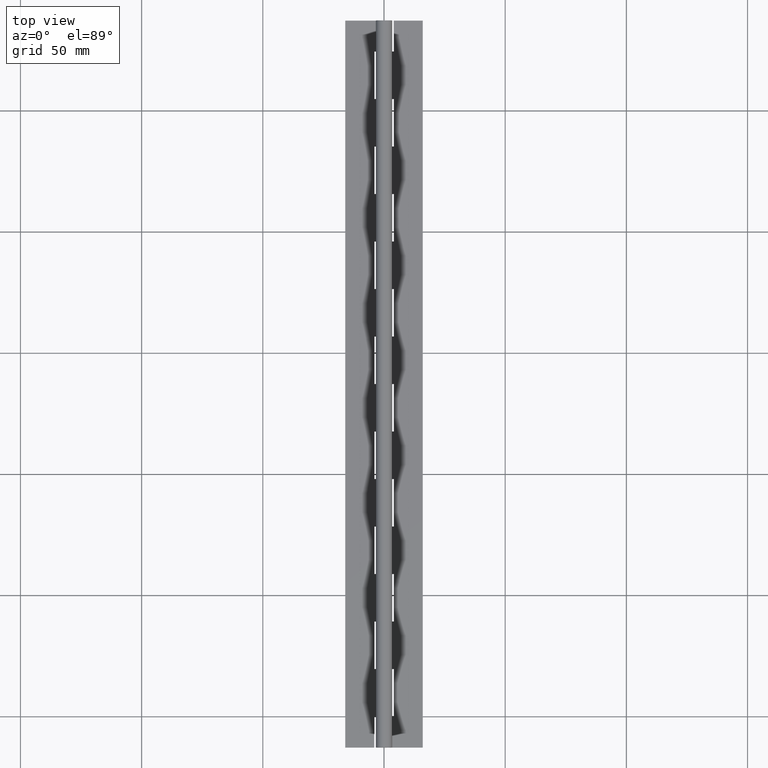
[diagram: clean part render]
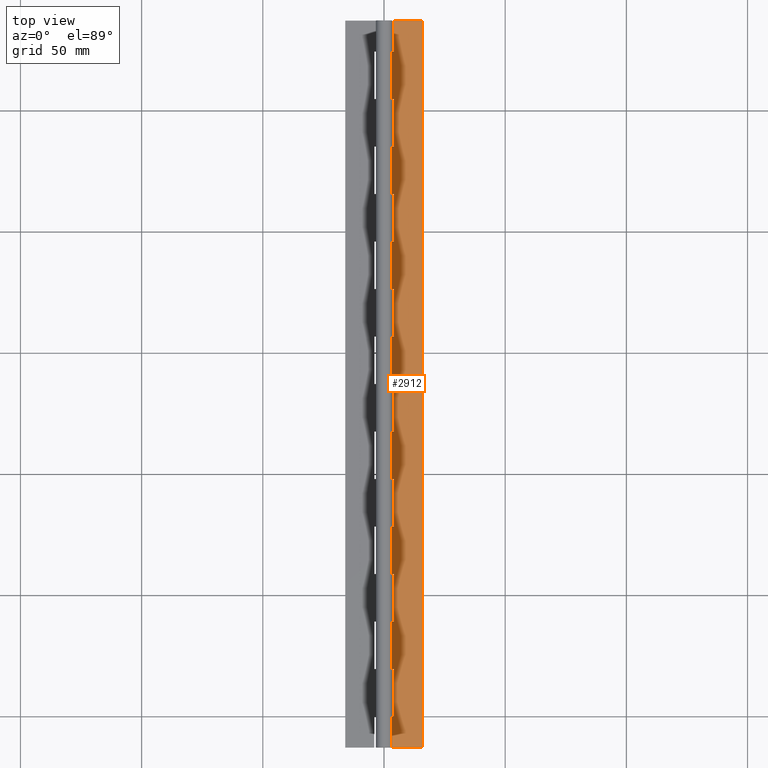
[diagram: same view with one face highlighted and labeled with its STEP entity id]
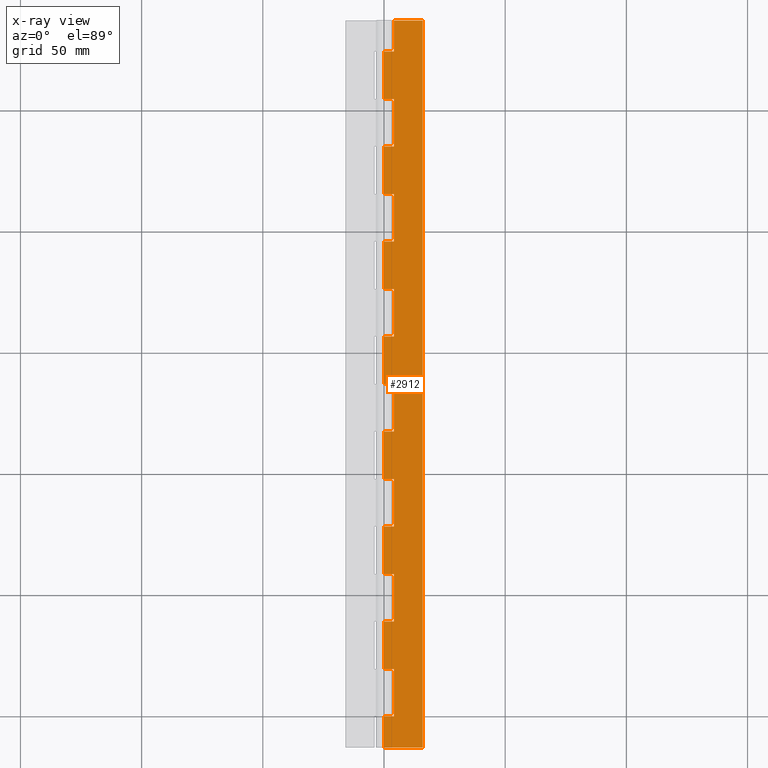
[diagram: x-ray of the same camera — body ghosted, the highlighted face saturated]
A machine part, top view. The second image highlights one B-rep face of the part: STEP entity #2912.
The next image is the same camera in x-ray: the body ghosted, the highlighted face saturated — about 0% of this face is hidden behind the body in this view.
In plain terms, the highlighted planar face has unit normal (-0, 0, -1).
Its self-contained STEP definition (entity closure, byte-faithful):
#18 = ORIENTED_EDGE ( 'NONE', *, *, #1668, .T. ) ;
#20 = EDGE_CURVE ( 'NONE', #1975, #3031, #1834, .T. ) ;
#45 = CARTESIAN_POINT ( 'NONE',  ( 0.0000000000000000000, 98.00000000000002800, -1.750002187502756900 ) ) ;
#72 = CARTESIAN_POINT ( 'NONE',  ( 0.0000000000000000000, 117.6000000000000100, -1.750002187502756900 ) ) ;
#91 = ORIENTED_EDGE ( 'NONE', *, *, #2311, .T. ) ;
#96 = DIRECTION ( 'NONE',  ( -1.770125995894701000E-016, -1.000000000000000000, 4.797936125805254900E-033 ) ) ;
#112 = ORIENTED_EDGE ( 'NONE', *, *, #265, .T. ) ;
#127 = DIRECTION ( 'NONE',  ( 1.000000000000000000, 0.0000000000000000000, 0.0000000000000000000 ) ) ;
#136 = ORIENTED_EDGE ( 'NONE', *, *, #286, .T. ) ;
#141 = VECTOR ( 'NONE', #925, 1000.000000000000000 ) ;
#181 = VECTOR ( 'NONE', #328, 1000.000000000000000 ) ;
#190 = CARTESIAN_POINT ( 'NONE',  ( 4.000000000000000000, 254.8000000000000400, -1.750002187502757200 ) ) ;
#192 = CARTESIAN_POINT ( 'NONE',  ( 4.000000000000024000, 274.3999999999999800, -1.750002187502757200 ) ) ;
#235 = EDGE_CURVE ( 'NONE', #1399, #2593, #2533, .T. ) ;
#261 = CARTESIAN_POINT ( 'NONE',  ( 4.000000000000010700, 274.3999999999999800, -1.750002187502757200 ) ) ;
#265 = EDGE_CURVE ( 'NONE', #842, #1924, #270, .T. ) ;
#270 = LINE ( 'NONE', #72, #3214 ) ;
#286 = EDGE_CURVE ( 'NONE', #2292, #3274, #1700, .T. ) ;
#288 = VERTEX_POINT ( 'NONE', #2581 ) ;
#298 = CARTESIAN_POINT ( 'NONE',  ( 0.0000000000000000000, 176.4000000000000300, -1.750002187502756900 ) ) ;
#302 = DIRECTION ( 'NONE',  ( -0.0000000000000000000, -1.000000000000000000, -0.0000000000000000000 ) ) ;
#328 = DIRECTION ( 'NONE',  ( -0.0000000000000000000, -1.000000000000000000, -0.0000000000000000000 ) ) ;
#335 = DIRECTION ( 'NONE',  ( 1.000000000000000000, 0.0000000000000000000, -2.710505431213761100E-017 ) ) ;
#369 = VECTOR ( 'NONE', #2018, 1000.000000000000000 ) ;
#372 = LINE ( 'NONE', #45, #1801 ) ;
#386 = CARTESIAN_POINT ( 'NONE',  ( 3.999999999999996400, 78.40000000000000600, -1.750002187502756900 ) ) ;
#387 = CARTESIAN_POINT ( 'NONE',  ( 0.0000000000000000000, 39.20000000000001000, -1.750002187502756900 ) ) ;
#395 = VERTEX_POINT ( 'NONE', #2987 ) ;
#422 = CARTESIAN_POINT ( 'NONE',  ( 0.0000000000000000000, 78.40000000000002000, -1.750002187502756900 ) ) ;
#427 = CARTESIAN_POINT ( 'NONE',  ( 3.999999999999996400, 274.3999999999999800, -1.750002187502756900 ) ) ;
#436 = LINE ( 'NONE', #3615, #1863 ) ;
#466 = EDGE_CURVE ( 'NONE', #1770, #1315, #3601, .T. ) ;
#487 = EDGE_CURVE ( 'NONE', #1264, #1090, #3339, .T. ) ;
#537 = VECTOR ( 'NONE', #96, 1000.000000000000000 ) ;
#539 = LINE ( 'NONE', #901, #369 ) ;
#540 = EDGE_CURVE ( 'NONE', #3142, #2324, #1828, .T. ) ;
#571 = ORIENTED_EDGE ( 'NONE', *, *, #2564, .T. ) ;
#574 = VECTOR ( 'NONE', #1943, 1000.000000000000000 ) ;
#593 = LINE ( 'NONE', #261, #1268 ) ;
#605 = VERTEX_POINT ( 'NONE', #832 ) ;
#614 = DIRECTION ( 'NONE',  ( -1.000000000000000000, 0.0000000000000000000, 2.710505431213761100E-017 ) ) ;
#623 = PLANE ( 'NONE',  #3542 ) ;
#624 = CARTESIAN_POINT ( 'NONE',  ( 0.0000000000000000000, 156.8000000000000100, -1.750002187502756900 ) ) ;
#634 = VECTOR ( 'NONE', #2372, 1000.000000000000000 ) ;
#645 = CARTESIAN_POINT ( 'NONE',  ( 4.000000000000017800, 274.3999999999999800, -1.750002187502757200 ) ) ;
#683 = LINE ( 'NONE', #2185, #2006 ) ;
#723 = CARTESIAN_POINT ( 'NONE',  ( 3.999999999999999100, 287.1999999999999300, -1.750002187502757400 ) ) ;
#725 = LINE ( 'NONE', #2004, #3484 ) ;
#739 = VERTEX_POINT ( 'NONE', #2451 ) ;
#784 = CARTESIAN_POINT ( 'NONE',  ( 4.000000000000045300, 274.3999999999999800, -1.750002187502757200 ) ) ;
#791 = CARTESIAN_POINT ( 'NONE',  ( 2.143134577426118000E-016, 287.1999999999999300, -1.750002187502757400 ) ) ;
#792 = VERTEX_POINT ( 'NONE', #2283 ) ;
#799 = CARTESIAN_POINT ( 'NONE',  ( 0.0000000000000000000, 235.2000000000000200, -1.750002187502756900 ) ) ;
#806 = ORIENTED_EDGE ( 'NONE', *, *, #2696, .T. ) ;
#828 = DIRECTION ( 'NONE',  ( -1.000000000000000000, 0.0000000000000000000, 2.710505431213761100E-017 ) ) ;
#831 = VERTEX_POINT ( 'NONE', #3640 ) ;
#832 = CARTESIAN_POINT ( 'NONE',  ( 2.143125705451388300E-016, 254.8000000000000400, -1.750002187502756900 ) ) ;
#842 = VERTEX_POINT ( 'NONE', #844 ) ;
#843 = EDGE_CURVE ( 'NONE', #395, #3473, #3598, .T. ) ;
#844 = CARTESIAN_POINT ( 'NONE',  ( 3.999999999999996400, 117.6000000000000100, -1.750002187502756900 ) ) ;
#863 = EDGE_CURVE ( 'NONE', #831, #739, #1329, .T. ) ;
#884 = DIRECTION ( 'NONE',  ( 1.000000000000000000, 0.0000000000000000000, -2.710505431213761100E-017 ) ) ;
#901 = CARTESIAN_POINT ( 'NONE',  ( 0.0000000000000000000, 0.0000000000000000000, -1.750002187502756900 ) ) ;
#914 = LINE ( 'NONE', #2896, #2317 ) ;
#924 = DIRECTION ( 'NONE',  ( -1.000000000000000000, 0.0000000000000000000, 2.710505431213761100E-017 ) ) ;
#925 = DIRECTION ( 'NONE',  ( -1.000000000000000000, 0.0000000000000000000, 2.710505431213761100E-017 ) ) ;
#926 = EDGE_CURVE ( 'NONE', #1336, #842, #1074, .T. ) ;
#943 = ORIENTED_EDGE ( 'NONE', *, *, #2421, .T. ) ;
#961 = LINE ( 'NONE', #1693, #3124 ) ;
#971 = CARTESIAN_POINT ( 'NONE',  ( 4.000000000000031100, 274.3999999999999800, -1.750002187502757200 ) ) ;
#974 = VERTEX_POINT ( 'NONE', #1104 ) ;
#1007 = ORIENTED_EDGE ( 'NONE', *, *, #1493, .T. ) ;
#1064 = ORIENTED_EDGE ( 'NONE', *, *, #20, .T. ) ;
#1074 = LINE ( 'NONE', #192, #1826 ) ;
#1085 = VECTOR ( 'NONE', #1494, 1000.000000000000000 ) ;
#1090 = VERTEX_POINT ( 'NONE', #3050 ) ;
#1104 = CARTESIAN_POINT ( 'NONE',  ( 16.00000000000000000, -12.80000000000000100, -1.750002187502757400 ) ) ;
#1105 = CARTESIAN_POINT ( 'NONE',  ( 2.143134577426118000E-016, 274.3999999999999800, -1.750002187502757400 ) ) ;
#1107 = EDGE_CURVE ( 'NONE', #3001, #288, #2703, .T. ) ;
#1128 = LINE ( 'NONE', #1467, #3312 ) ;
#1149 = VECTOR ( 'NONE', #2079, 1000.000000000000000 ) ;
#1176 = VERTEX_POINT ( 'NONE', #3076 ) ;
#1216 = DIRECTION ( 'NONE',  ( -1.770125995894701000E-016, -1.000000000000000000, 4.797936125805254900E-033 ) ) ;
#1240 = ORIENTED_EDGE ( 'NONE', *, *, #1746, .T. ) ;
#1264 = VERTEX_POINT ( 'NONE', #190 ) ;
#1268 = VECTOR ( 'NONE', #2819, 1000.000000000000000 ) ;
#1310 = EDGE_CURVE ( 'NONE', #3274, #831, #1780, .T. ) ;
#1315 = VERTEX_POINT ( 'NONE', #2883 ) ;
#1329 = LINE ( 'NONE', #784, #2752 ) ;
#1336 = VERTEX_POINT ( 'NONE', #1444 ) ;
#1376 = ORIENTED_EDGE ( 'NONE', *, *, #2905, .F. ) ;
#1385 = CARTESIAN_POINT ( 'NONE',  ( 0.0000000000000000000, 196.0000000000000300, -1.750002187502756900 ) ) ;
#1399 = VERTEX_POINT ( 'NONE', #2307 ) ;
#1410 = CARTESIAN_POINT ( 'NONE',  ( 0.0000000000000000000, 254.8000000000000400, -1.750002187502756900 ) ) ;
#1421 = DIRECTION ( 'NONE',  ( -0.0000000000000000000, -1.000000000000000000, -0.0000000000000000000 ) ) ;
#1425 = CARTESIAN_POINT ( 'NONE',  ( 2.143125705451388300E-016, 39.20000000000001000, -1.750002187502756900 ) ) ;
#1444 = CARTESIAN_POINT ( 'NONE',  ( 4.000000000000000000, 137.2000000000000200, -1.750002187502757200 ) ) ;
#1445 = CARTESIAN_POINT ( 'NONE',  ( 2.143134577426118000E-016, 274.3999999999999800, -1.750002187502757400 ) ) ;
#1450 = EDGE_CURVE ( 'NONE', #3473, #1399, #2656, .T. ) ;
#1467 = CARTESIAN_POINT ( 'NONE',  ( 16.00000000000000000, -12.80000000000000100, -1.750002187502757400 ) ) ;
#1493 = EDGE_CURVE ( 'NONE', #3504, #3278, #2478, .T. ) ;
#1494 = DIRECTION ( 'NONE',  ( -0.0000000000000000000, -1.000000000000000000, -0.0000000000000000000 ) ) ;
#1523 = VERTEX_POINT ( 'NONE', #3659 ) ;
#1539 = VECTOR ( 'NONE', #3360, 1000.000000000000000 ) ;
#1546 = ORIENTED_EDGE ( 'NONE', *, *, #2907, .T. ) ;
#1547 = CARTESIAN_POINT ( 'NONE',  ( 2.143125705451388300E-016, 215.6000000000000500, -1.750002187502756900 ) ) ;
#1593 = DIRECTION ( 'NONE',  ( 1.000000000000000000, 0.0000000000000000000, -2.710505431213761100E-017 ) ) ;
#1608 = DIRECTION ( 'NONE',  ( 1.000000000000000000, 0.0000000000000000000, -2.710505431213761100E-017 ) ) ;
#1630 = CARTESIAN_POINT ( 'NONE',  ( 2.143134577426118000E-016, 274.3999999999999800, -1.750002187502757400 ) ) ;
#1637 = CARTESIAN_POINT ( 'NONE',  ( 2.143125705451388300E-016, 156.8000000000000100, -1.750002187502756900 ) ) ;
#1664 = LINE ( 'NONE', #2117, #3081 ) ;
#1668 = EDGE_CURVE ( 'NONE', #1924, #2241, #436, .T. ) ;
#1693 = CARTESIAN_POINT ( 'NONE',  ( 2.143134577426118000E-016, 274.3999999999999800, -1.750002187502757400 ) ) ;
#1700 = LINE ( 'NONE', #1445, #181 ) ;
#1727 = DIRECTION ( 'NONE',  ( -0.0000000000000000000, -1.000000000000000000, -0.0000000000000000000 ) ) ;
#1739 = VECTOR ( 'NONE', #127, 1000.000000000000000 ) ;
#1740 = ORIENTED_EDGE ( 'NONE', *, *, #3535, .T. ) ;
#1746 = EDGE_CURVE ( 'NONE', #3278, #1336, #2433, .T. ) ;
#1757 = DIRECTION ( 'NONE',  ( -1.000000000000000000, 0.0000000000000000000, 2.710505431213761100E-017 ) ) ;
#1761 = DIRECTION ( 'NONE',  ( -1.000000000000000000, 0.0000000000000000000, 0.0000000000000000000 ) ) ;
#1765 = CARTESIAN_POINT ( 'NONE',  ( 2.143125705451388300E-016, 137.2000000000000200, -1.750002187502756900 ) ) ;
#1770 = VERTEX_POINT ( 'NONE', #2188 ) ;
#1771 = CARTESIAN_POINT ( 'NONE',  ( 4.000000000000000000, 98.00000000000001400, -1.750002187502757200 ) ) ;
#1780 = LINE ( 'NONE', #2619, #2166 ) ;
#1792 = VECTOR ( 'NONE', #1216, 1000.000000000000000 ) ;
#1795 = VECTOR ( 'NONE', #2118, 1000.000000000000000 ) ;
#1801 = VECTOR ( 'NONE', #335, 1000.000000000000000 ) ;
#1814 = EDGE_CURVE ( 'NONE', #605, #1264, #2834, .T. ) ;
#1826 = VECTOR ( 'NONE', #2903, 1000.000000000000000 ) ;
#1828 = LINE ( 'NONE', #791, #1739 ) ;
#1834 = LINE ( 'NONE', #1630, #1085 ) ;
#1863 = VECTOR ( 'NONE', #3568, 1000.000000000000000 ) ;
#1886 = VECTOR ( 'NONE', #1757, 1000.000000000000000 ) ;
#1912 = ORIENTED_EDGE ( 'NONE', *, *, #3208, .T. ) ;
#1924 = VERTEX_POINT ( 'NONE', #3645 ) ;
#1943 = DIRECTION ( 'NONE',  ( -0.0000000000000000000, -1.000000000000000000, -0.0000000000000000000 ) ) ;
#1968 = FACE_OUTER_BOUND ( 'NONE', #2936, .T. ) ;
#1975 = VERTEX_POINT ( 'NONE', #3404 ) ;
#2004 = CARTESIAN_POINT ( 'NONE',  ( 2.143134577426118000E-016, 274.3999999999999800, -1.750002187502757400 ) ) ;
#2006 = VECTOR ( 'NONE', #3146, 1000.000000000000000 ) ;
#2018 = DIRECTION ( 'NONE',  ( -1.000000000000000000, 0.0000000000000000000, 2.710505431213761100E-017 ) ) ;
#2028 = CARTESIAN_POINT ( 'NONE',  ( 2.143125705451388300E-016, 98.00000000000002800, -1.750002187502756900 ) ) ;
#2044 = ORIENTED_EDGE ( 'NONE', *, *, #2446, .F. ) ;
#2058 = LINE ( 'NONE', #2891, #1886 ) ;
#2079 = DIRECTION ( 'NONE',  ( 1.000000000000000000, 0.0000000000000000000, -2.710505431213761100E-017 ) ) ;
#2080 = VECTOR ( 'NONE', #1593, 1000.000000000000000 ) ;
#2117 = CARTESIAN_POINT ( 'NONE',  ( 4.000000000000038200, 274.3999999999999800, -1.750002187502757200 ) ) ;
#2118 = DIRECTION ( 'NONE',  ( 1.000000000000000000, 0.0000000000000000000, -2.710505431213761100E-017 ) ) ;
#2166 = VECTOR ( 'NONE', #884, 1000.000000000000000 ) ;
#2182 = ORIENTED_EDGE ( 'NONE', *, *, #1450, .T. ) ;
#2185 = CARTESIAN_POINT ( 'NONE',  ( 16.00000000000000000, 274.3999999999999800, -1.750002187502757400 ) ) ;
#2188 = CARTESIAN_POINT ( 'NONE',  ( 2.143125705451388300E-016, 58.80000000000001800, -1.750002187502756900 ) ) ;
#2191 = ORIENTED_EDGE ( 'NONE', *, *, #1107, .T. ) ;
#2211 = ORIENTED_EDGE ( 'NONE', *, *, #3233, .T. ) ;
#2241 = VERTEX_POINT ( 'NONE', #2028 ) ;
#2246 = EDGE_CURVE ( 'NONE', #2333, #792, #2058, .T. ) ;
#2263 = ORIENTED_EDGE ( 'NONE', *, *, #487, .T. ) ;
#2278 = LINE ( 'NONE', #799, #1539 ) ;
#2283 = CARTESIAN_POINT ( 'NONE',  ( 2.143125705451388300E-016, 274.4000000000000300, -1.750002187502756900 ) ) ;
#2292 = VERTEX_POINT ( 'NONE', #1425 ) ;
#2298 = VECTOR ( 'NONE', #3524, 1000.000000000000000 ) ;
#2307 = CARTESIAN_POINT ( 'NONE',  ( 4.000000000000000000, 176.4000000000000300, -1.750002187502757200 ) ) ;
#2311 = EDGE_CURVE ( 'NONE', #792, #605, #961, .T. ) ;
#2317 = VECTOR ( 'NONE', #3193, 1000.000000000000000 ) ;
#2324 = VERTEX_POINT ( 'NONE', #3131 ) ;
#2333 = VERTEX_POINT ( 'NONE', #3685 ) ;
#2351 = VERTEX_POINT ( 'NONE', #3634 ) ;
#2359 = ORIENTED_EDGE ( 'NONE', *, *, #2707, .T. ) ;
#2372 = DIRECTION ( 'NONE',  ( -1.000000000000000000, 0.0000000000000000000, 2.710505431213761100E-017 ) ) ;
#2381 = ORIENTED_EDGE ( 'NONE', *, *, #2641, .T. ) ;
#2402 = CARTESIAN_POINT ( 'NONE',  ( 4.000000000000003600, 274.3999999999999800, -1.750002187502757200 ) ) ;
#2409 = CARTESIAN_POINT ( 'NONE',  ( 4.000000000000000000, 215.6000000000000500, -1.750002187502757200 ) ) ;
#2410 = LINE ( 'NONE', #624, #141 ) ;
#2421 = EDGE_CURVE ( 'NONE', #1523, #395, #3525, .T. ) ;
#2433 = LINE ( 'NONE', #3014, #3203 ) ;
#2446 = EDGE_CURVE ( 'NONE', #2324, #974, #683, .T. ) ;
#2451 = CARTESIAN_POINT ( 'NONE',  ( 3.999999999999996400, 0.0000000000000000000, -1.750002187502756900 ) ) ;
#2476 = CARTESIAN_POINT ( 'NONE',  ( 2.143134577426118000E-016, 274.3999999999999800, -1.750002187502757400 ) ) ;
#2477 = ORIENTED_EDGE ( 'NONE', *, *, #2246, .T. ) ;
#2478 = LINE ( 'NONE', #1105, #3333 ) ;
#2490 = ORIENTED_EDGE ( 'NONE', *, *, #2638, .T. ) ;
#2504 = ORIENTED_EDGE ( 'NONE', *, *, #926, .T. ) ;
#2533 = LINE ( 'NONE', #645, #1792 ) ;
#2536 = LINE ( 'NONE', #2679, #1795 ) ;
#2556 = ORIENTED_EDGE ( 'NONE', *, *, #3628, .T. ) ;
#2564 = EDGE_CURVE ( 'NONE', #2593, #3504, #2410, .T. ) ;
#2567 = DIRECTION ( 'NONE',  ( -1.770125995894701000E-016, -1.000000000000000000, 4.797936125805254900E-033 ) ) ;
#2569 = EDGE_CURVE ( 'NONE', #1176, #2351, #914, .T. ) ;
#2571 = VECTOR ( 'NONE', #3073, 1000.000000000000000 ) ;
#2575 = ORIENTED_EDGE ( 'NONE', *, *, #466, .T. ) ;
#2581 = CARTESIAN_POINT ( 'NONE',  ( 2.143125705451388300E-016, 78.40000000000002000, -1.750002187502756900 ) ) ;
#2593 = VERTEX_POINT ( 'NONE', #2617 ) ;
#2603 = DIRECTION ( 'NONE',  ( -2.710505431213761100E-017, 0.0000000000000000000, -1.000000000000000000 ) ) ;
#2617 = CARTESIAN_POINT ( 'NONE',  ( 3.999999999999996400, 156.8000000000000100, -1.750002187502756900 ) ) ;
#2619 = CARTESIAN_POINT ( 'NONE',  ( 0.0000000000000000000, 19.60000000000000500, -1.750002187502756900 ) ) ;
#2638 = EDGE_CURVE ( 'NONE', #3189, #2292, #2809, .T. ) ;
#2641 = EDGE_CURVE ( 'NONE', #2920, #3001, #3566, .T. ) ;
#2656 = LINE ( 'NONE', #298, #1149 ) ;
#2664 = ORIENTED_EDGE ( 'NONE', *, *, #540, .F. ) ;
#2679 = CARTESIAN_POINT ( 'NONE',  ( 0.0000000000000000000, 215.6000000000000500, -1.750002187502756900 ) ) ;
#2683 = ORIENTED_EDGE ( 'NONE', *, *, #235, .T. ) ;
#2693 = DIRECTION ( 'NONE',  ( -1.770125995894701000E-016, -1.000000000000000000, 4.797936125805254900E-033 ) ) ;
#2694 = DIRECTION ( 'NONE',  ( -1.770125995894701000E-016, -1.000000000000000000, 4.797936125805254900E-033 ) ) ;
#2696 = EDGE_CURVE ( 'NONE', #3031, #2710, #2536, .T. ) ;
#2703 = LINE ( 'NONE', #422, #2298 ) ;
#2707 = EDGE_CURVE ( 'NONE', #3142, #2333, #3308, .T. ) ;
#2710 = VERTEX_POINT ( 'NONE', #2409 ) ;
#2733 = CARTESIAN_POINT ( 'NONE',  ( 3.999999999999996400, 39.20000000000000300, -1.750002187502756900 ) ) ;
#2745 = DIRECTION ( 'NONE',  ( 1.000000000000000000, 0.0000000000000000000, -2.710505431213761100E-017 ) ) ;
#2752 = VECTOR ( 'NONE', #2567, 1000.000000000000000 ) ;
#2766 = VECTOR ( 'NONE', #828, 1000.000000000000000 ) ;
#2809 = LINE ( 'NONE', #387, #634 ) ;
#2819 = DIRECTION ( 'NONE',  ( -1.770125995894701000E-016, -1.000000000000000000, 4.797936125805254900E-033 ) ) ;
#2834 = LINE ( 'NONE', #1410, #2080 ) ;
#2878 = CARTESIAN_POINT ( 'NONE',  ( 0.0000000000000000000, 274.3999999999999800, -1.750002187502756900 ) ) ;
#2883 = CARTESIAN_POINT ( 'NONE',  ( 4.000000000000000000, 58.80000000000000400, -1.750002187502757200 ) ) ;
#2891 = CARTESIAN_POINT ( 'NONE',  ( 0.0000000000000000000, 274.4000000000000300, -1.750002187502756900 ) ) ;
#2893 = ORIENTED_EDGE ( 'NONE', *, *, #2569, .T. ) ;
#2896 = CARTESIAN_POINT ( 'NONE',  ( 2.143134577426118000E-016, 274.3999999999999800, -1.750002187502757400 ) ) ;
#2903 = DIRECTION ( 'NONE',  ( -1.770125995894701000E-016, -1.000000000000000000, 4.797936125805254900E-033 ) ) ;
#2905 = EDGE_CURVE ( 'NONE', #974, #2351, #1128, .T. ) ;
#2907 = EDGE_CURVE ( 'NONE', #2241, #2920, #372, .T. ) ;
#2912 = ADVANCED_FACE ( 'NONE', ( #1968 ), #623, .F. ) ;
#2920 = VERTEX_POINT ( 'NONE', #1771 ) ;
#2936 = EDGE_LOOP ( 'NONE', ( #2664, #2359, #2477, #91, #3479, #2263, #1740, #1064, #806, #2556, #943, #3241, #2182, #2683, #571, #1007, #1240, #2504, #112, #18, #1546, #2381, #2191, #1912, #2575, #3259, #2490, #136, #3074, #2984, #2211, #2893, #1376, #2044 ) ) ;
#2976 = CARTESIAN_POINT ( 'NONE',  ( 2.143125705451388300E-016, 176.4000000000000300, -1.750002187502756900 ) ) ;
#2984 = ORIENTED_EDGE ( 'NONE', *, *, #863, .T. ) ;
#2987 = CARTESIAN_POINT ( 'NONE',  ( 2.143125705451388300E-016, 196.0000000000000300, -1.750002187502756900 ) ) ;
#3001 = VERTEX_POINT ( 'NONE', #386 ) ;
#3014 = CARTESIAN_POINT ( 'NONE',  ( 0.0000000000000000000, 137.2000000000000200, -1.750002187502756900 ) ) ;
#3031 = VERTEX_POINT ( 'NONE', #1547 ) ;
#3050 = CARTESIAN_POINT ( 'NONE',  ( 3.999999999999996400, 235.2000000000000200, -1.750002187502756900 ) ) ;
#3073 = DIRECTION ( 'NONE',  ( -1.770125995894701000E-016, -1.000000000000000000, 4.797936125805254900E-033 ) ) ;
#3074 = ORIENTED_EDGE ( 'NONE', *, *, #1310, .T. ) ;
#3076 = CARTESIAN_POINT ( 'NONE',  ( 0.0000000000000000000, 0.0000000000000000000, -1.750002187502757400 ) ) ;
#3081 = VECTOR ( 'NONE', #2693, 1000.000000000000000 ) ;
#3094 = EDGE_CURVE ( 'NONE', #1315, #3189, #1664, .T. ) ;
#3124 = VECTOR ( 'NONE', #1727, 1000.000000000000000 ) ;
#3131 = CARTESIAN_POINT ( 'NONE',  ( 16.00000000000000000, 287.1999999999999300, -1.750002187502757400 ) ) ;
#3142 = VERTEX_POINT ( 'NONE', #723 ) ;
#3146 = DIRECTION ( 'NONE',  ( -0.0000000000000000000, -1.000000000000000000, -0.0000000000000000000 ) ) ;
#3189 = VERTEX_POINT ( 'NONE', #2733 ) ;
#3193 = DIRECTION ( 'NONE',  ( -0.0000000000000000000, -1.000000000000000000, -0.0000000000000000000 ) ) ;
#3203 = VECTOR ( 'NONE', #2745, 1000.000000000000000 ) ;
#3208 = EDGE_CURVE ( 'NONE', #288, #1770, #725, .T. ) ;
#3214 = VECTOR ( 'NONE', #614, 1000.000000000000000 ) ;
#3218 = VECTOR ( 'NONE', #2694, 1000.000000000000000 ) ;
#3233 = EDGE_CURVE ( 'NONE', #739, #1176, #539, .T. ) ;
#3241 = ORIENTED_EDGE ( 'NONE', *, *, #843, .T. ) ;
#3259 = ORIENTED_EDGE ( 'NONE', *, *, #3094, .T. ) ;
#3274 = VERTEX_POINT ( 'NONE', #3452 ) ;
#3278 = VERTEX_POINT ( 'NONE', #1765 ) ;
#3308 = LINE ( 'NONE', #427, #3218 ) ;
#3312 = VECTOR ( 'NONE', #1761, 1000.000000000000000 ) ;
#3333 = VECTOR ( 'NONE', #1421, 1000.000000000000000 ) ;
#3339 = LINE ( 'NONE', #2402, #2571 ) ;
#3360 = DIRECTION ( 'NONE',  ( -1.000000000000000000, 0.0000000000000000000, 2.710505431213761100E-017 ) ) ;
#3404 = CARTESIAN_POINT ( 'NONE',  ( 2.143125705451388300E-016, 235.2000000000000200, -1.750002187502756900 ) ) ;
#3426 = VECTOR ( 'NONE', #1608, 1000.000000000000000 ) ;
#3452 = CARTESIAN_POINT ( 'NONE',  ( 2.143134577426118000E-016, 19.60000000000000500, -1.750002187502757400 ) ) ;
#3473 = VERTEX_POINT ( 'NONE', #2976 ) ;
#3479 = ORIENTED_EDGE ( 'NONE', *, *, #1814, .T. ) ;
#3484 = VECTOR ( 'NONE', #302, 1000.000000000000000 ) ;
#3504 = VERTEX_POINT ( 'NONE', #1637 ) ;
#3524 = DIRECTION ( 'NONE',  ( -1.000000000000000000, 0.0000000000000000000, 2.710505431213761100E-017 ) ) ;
#3525 = LINE ( 'NONE', #1385, #2766 ) ;
#3535 = EDGE_CURVE ( 'NONE', #1090, #1975, #2278, .T. ) ;
#3536 = CARTESIAN_POINT ( 'NONE',  ( 0.0000000000000000000, 58.80000000000001800, -1.750002187502756900 ) ) ;
#3542 = AXIS2_PLACEMENT_3D ( 'NONE', #2878, #2603, #924 ) ;
#3566 = LINE ( 'NONE', #971, #537 ) ;
#3568 = DIRECTION ( 'NONE',  ( -0.0000000000000000000, -1.000000000000000000, -0.0000000000000000000 ) ) ;
#3598 = LINE ( 'NONE', #2476, #574 ) ;
#3601 = LINE ( 'NONE', #3536, #3426 ) ;
#3615 = CARTESIAN_POINT ( 'NONE',  ( 2.143134577426118000E-016, 274.3999999999999800, -1.750002187502757400 ) ) ;
#3628 = EDGE_CURVE ( 'NONE', #2710, #1523, #593, .T. ) ;
#3634 = CARTESIAN_POINT ( 'NONE',  ( 2.143134577426118000E-016, -12.80000000000000100, -1.750002187502757400 ) ) ;
#3640 = CARTESIAN_POINT ( 'NONE',  ( 4.000000000000000000, 19.60000000000000100, -1.750002187502757200 ) ) ;
#3645 = CARTESIAN_POINT ( 'NONE',  ( 2.143125705451388300E-016, 117.6000000000000100, -1.750002187502756900 ) ) ;
#3659 = CARTESIAN_POINT ( 'NONE',  ( 3.999999999999996400, 196.0000000000000300, -1.750002187502756900 ) ) ;
#3685 = CARTESIAN_POINT ( 'NONE',  ( 3.999999999999996400, 274.4000000000000300, -1.750002187502756900 ) ) ;